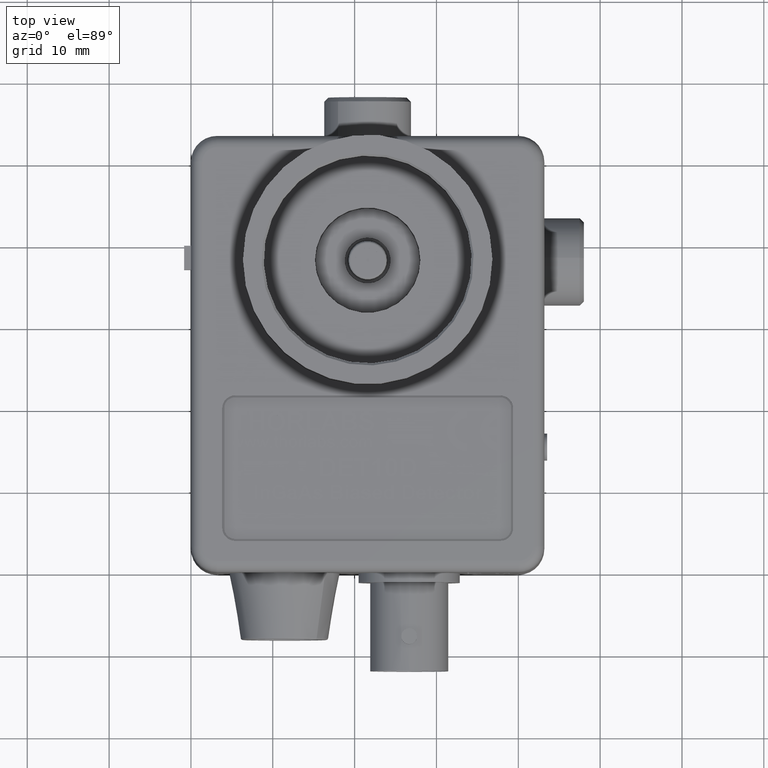
[diagram: clean part render]
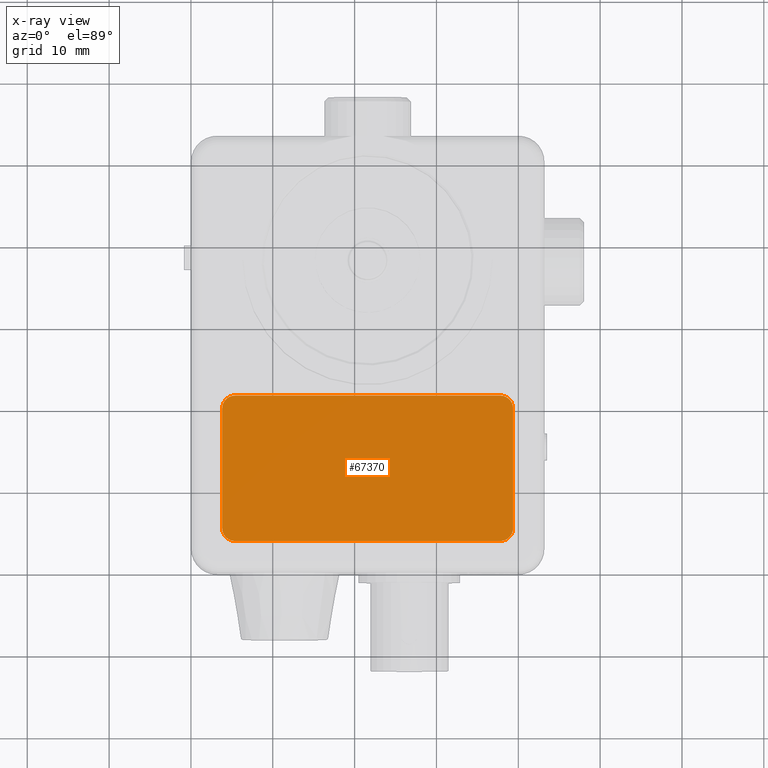
[diagram: x-ray — body ghosted, one internal face saturated and labeled with its STEP entity id]
A machine part, top view, then the same camera in x-ray: the body is ghosted and one INTERNAL B-rep face — a face not visible from any outside direction — is saturated and labeled: STEP entity #67370.
In plain terms, the highlighted planar face has unit normal (0, 0, -1).
Its self-contained STEP definition (entity closure, byte-faithful):
#15262 = DIRECTION ( 'NONE',  ( -1.000000000000000000, 0.0000000000000000000, 0.0000000000000000000 ) ) ;
#15263 = DIRECTION ( 'NONE',  ( 0.0000000000000000000, 0.0000000000000000000, 1.000000000000000000 ) ) ;
#15264 = CARTESIAN_POINT ( 'NONE',  ( 0.2124999999999999900, 0.2125000000000001900, 0.7299999999999999800 ) ) ;
#15265 = AXIS2_PLACEMENT_3D ( 'NONE', #15264, #15263, #15262 ) ;
#15266 = CIRCLE ( 'NONE', #15265, 0.06250000000000001400 ) ;
#15272 = CARTESIAN_POINT ( 'NONE',  ( 0.1499999999999999700, 0.2125000000000001900, 0.7299999999999999800 ) ) ;
#15281 = CARTESIAN_POINT ( 'NONE',  ( 0.2124999999999999900, 0.1500000000000001900, 0.7299999999999999800 ) ) ;
#15382 = DIRECTION ( 'NONE',  ( -1.000000000000000000, 0.0000000000000000000, 0.0000000000000000000 ) ) ;
#15383 = VECTOR ( 'NONE', #15382, 39.37007874015748100 ) ;
#15384 = CARTESIAN_POINT ( 'NONE',  ( 0.2124999999999999900, 0.8499999999999999800, 0.7299999999999999800 ) ) ;
#15389 = LINE ( 'NONE', #15384, #15383 ) ;
#15394 = LINE ( 'NONE', #15444, #15443 ) ;
#15395 = CARTESIAN_POINT ( 'NONE',  ( 1.549999999999999600, 0.7875000000000000900, 0.7299999999999999800 ) ) ;
#15396 = DIRECTION ( 'NONE',  ( -1.000000000000000000, 0.0000000000000000000, 0.0000000000000000000 ) ) ;
#15397 = DIRECTION ( 'NONE',  ( 0.0000000000000000000, 0.0000000000000000000, 1.000000000000000000 ) ) ;
#15398 = CARTESIAN_POINT ( 'NONE',  ( 1.487499999999999600, 0.7875000000000000900, 0.7299999999999999800 ) ) ;
#15399 = AXIS2_PLACEMENT_3D ( 'NONE', #15398, #15397, #15396 ) ;
#15400 = CIRCLE ( 'NONE', #15399, 0.06249999999999995100 ) ;
#15401 = CARTESIAN_POINT ( 'NONE',  ( 1.487499999999999600, 0.8499999999999999800, 0.7299999999999999800 ) ) ;
#15402 = CARTESIAN_POINT ( 'NONE',  ( 0.2124999999999999900, 0.8499999999999999800, 0.7299999999999999800 ) ) ;
#15441 = CARTESIAN_POINT ( 'NONE',  ( 0.1500000000000000800, 0.7875000000000000900, 0.7299999999999999800 ) ) ;
#15442 = DIRECTION ( 'NONE',  ( -2.969399993113330200E-017, -1.000000000000000000, 0.0000000000000000000 ) ) ;
#15443 = VECTOR ( 'NONE', #15442, 39.37007874015748100 ) ;
#15444 = CARTESIAN_POINT ( 'NONE',  ( 0.1499999999999999700, 0.2125000000000001900, 0.7299999999999999800 ) ) ;
#15484 = DIRECTION ( 'NONE',  ( 1.000000000000000000, 0.0000000000000000000, 0.0000000000000000000 ) ) ;
#15485 = VECTOR ( 'NONE', #15484, 39.37007874015748100 ) ;
#15486 = CARTESIAN_POINT ( 'NONE',  ( 1.487499999999999800, 0.1500000000000001900, 0.7299999999999999800 ) ) ;
#15487 = LINE ( 'NONE', #15486, #15485 ) ;
#15489 = DIRECTION ( 'NONE',  ( 1.000000000000000000, 0.0000000000000000000, 0.0000000000000000000 ) ) ;
#15490 = DIRECTION ( 'NONE',  ( 0.0000000000000000000, 0.0000000000000000000, 1.000000000000000000 ) ) ;
#15491 = CARTESIAN_POINT ( 'NONE',  ( 1.487499999999999800, 0.2125000000000001900, 0.7299999999999999800 ) ) ;
#15492 = AXIS2_PLACEMENT_3D ( 'NONE', #15491, #15490, #15489 ) ;
#15493 = CIRCLE ( 'NONE', #15492, 0.06249999999999995100 ) ;
#15498 = CARTESIAN_POINT ( 'NONE',  ( 1.487499999999999800, 0.1500000000000001900, 0.7299999999999999800 ) ) ;
#15499 = CARTESIAN_POINT ( 'NONE',  ( 1.549999999999999800, 0.2125000000000001900, 0.7299999999999999800 ) ) ;
#15601 = DIRECTION ( 'NONE',  ( 1.000000000000000000, 0.0000000000000000000, 0.0000000000000000000 ) ) ;
#15602 = DIRECTION ( 'NONE',  ( 0.0000000000000000000, 0.0000000000000000000, 1.000000000000000000 ) ) ;
#15603 = CARTESIAN_POINT ( 'NONE',  ( 0.2124999999999999900, 0.7875000000000000900, 0.7299999999999999800 ) ) ;
#15604 = AXIS2_PLACEMENT_3D ( 'NONE', #15603, #15602, #15601 ) ;
#15605 = CIRCLE ( 'NONE', #15604, 0.06249999999999991700 ) ;
#15708 = DIRECTION ( 'NONE',  ( -4.751039988981328300E-016, 1.000000000000000000, 0.0000000000000000000 ) ) ;
#15709 = VECTOR ( 'NONE', #15708, 39.37007874015748100 ) ;
#15710 = CARTESIAN_POINT ( 'NONE',  ( 1.549999999999999800, 0.2125000000000001900, 0.7299999999999999800 ) ) ;
#15711 = LINE ( 'NONE', #15710, #15709 ) ;
#15766 = FACE_OUTER_BOUND ( 'NONE', #67235, .T. ) ;
#15798 = DIRECTION ( 'NONE',  ( -1.000000000000000000, 0.0000000000000000000, 0.0000000000000000000 ) ) ;
#15799 = DIRECTION ( 'NONE',  ( 0.0000000000000000000, 0.0000000000000000000, -1.000000000000000000 ) ) ;
#15800 = CARTESIAN_POINT ( 'NONE',  ( 0.2124999999999999900, 0.2125000000000001900, 0.7299999999999999800 ) ) ;
#15801 = AXIS2_PLACEMENT_3D ( 'NONE', #15800, #15799, #15798 ) ;
#15802 = PLANE ( 'NONE',  #15801 ) ;
#67113 = VERTEX_POINT ( 'NONE', #15281 ) ;
#67121 = VERTEX_POINT ( 'NONE', #15272 ) ;
#67129 = EDGE_CURVE ( 'NONE', #67121, #67113, #15266, .T. ) ;
#67175 = EDGE_CURVE ( 'NONE', #67190, #67188, #15389, .T. ) ;
#67188 = VERTEX_POINT ( 'NONE', #15402 ) ;
#67190 = VERTEX_POINT ( 'NONE', #15401 ) ;
#67192 = EDGE_CURVE ( 'NONE', #67193, #67190, #15400, .T. ) ;
#67193 = VERTEX_POINT ( 'NONE', #15395 ) ;
#67195 = EDGE_CURVE ( 'NONE', #67197, #67121, #15394, .T. ) ;
#67197 = VERTEX_POINT ( 'NONE', #15441 ) ;
#67235 = EDGE_LOOP ( 'NONE', ( #67237, #67238, #67244, #67245, #67236, #67253, #67263, #67265 ) ) ;
#67236 = ORIENTED_EDGE ( 'NONE', *, *, #67192, .T. ) ;
#67237 = ORIENTED_EDGE ( 'NONE', *, *, #67129, .T. ) ;
#67238 = ORIENTED_EDGE ( 'NONE', *, *, #67259, .T. ) ;
#67241 = VERTEX_POINT ( 'NONE', #15499 ) ;
#67244 = ORIENTED_EDGE ( 'NONE', *, *, #67256, .T. ) ;
#67245 = ORIENTED_EDGE ( 'NONE', *, *, #67357, .T. ) ;
#67249 = VERTEX_POINT ( 'NONE', #15498 ) ;
#67253 = ORIENTED_EDGE ( 'NONE', *, *, #67175, .T. ) ;
#67256 = EDGE_CURVE ( 'NONE', #67249, #67241, #15493, .T. ) ;
#67259 = EDGE_CURVE ( 'NONE', #67113, #67249, #15487, .T. ) ;
#67263 = ORIENTED_EDGE ( 'NONE', *, *, #67303, .T. ) ;
#67265 = ORIENTED_EDGE ( 'NONE', *, *, #67195, .T. ) ;
#67303 = EDGE_CURVE ( 'NONE', #67188, #67197, #15605, .T. ) ;
#67357 = EDGE_CURVE ( 'NONE', #67241, #67193, #15711, .T. ) ;
#67370 = ADVANCED_FACE ( 'NONE', ( #15766 ), #15802, .F. ) ;